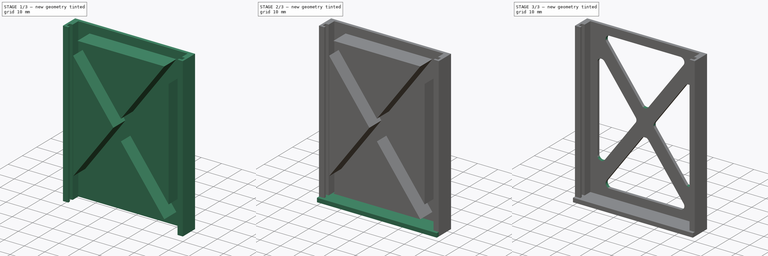
[diagram: build sequence overview — one tinted view per stage of 3, left to right]
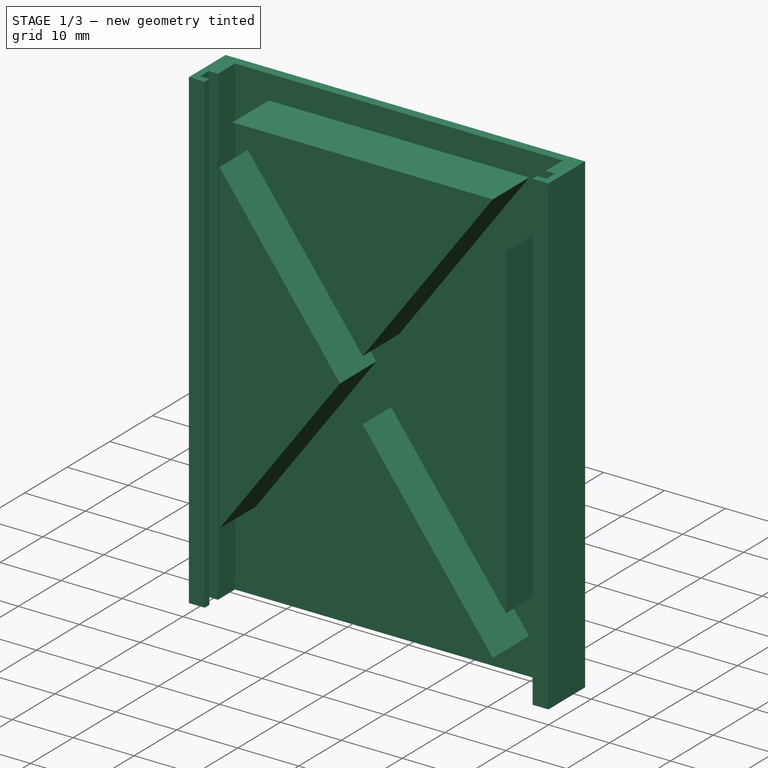
[diagram: stage 1 of 3 — iso view after this stage's code; geometry added in this stage tinted green]
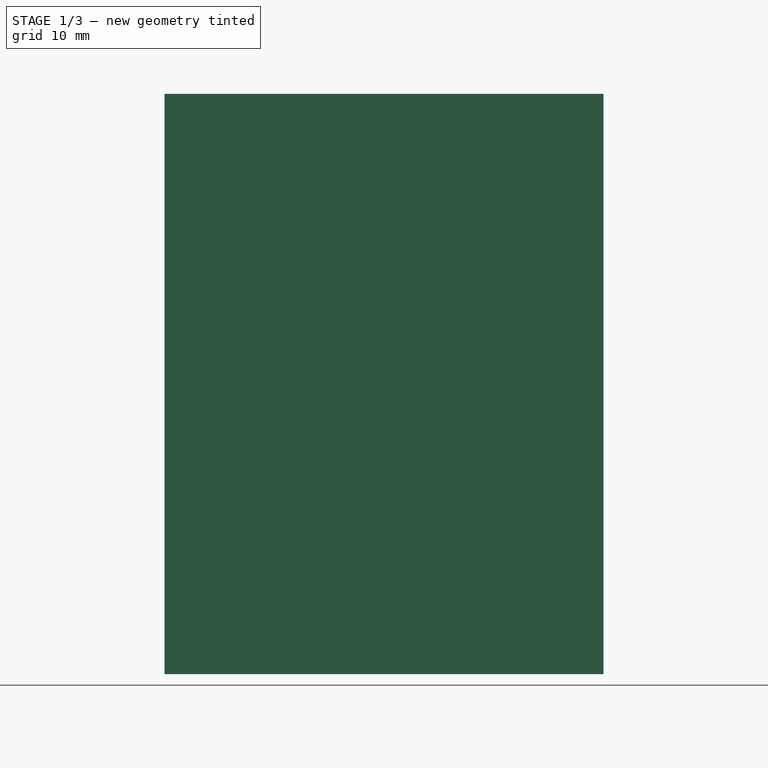
[diagram: stage 1 of 3 — front view after this stage's code; geometry added in this stage tinted green]
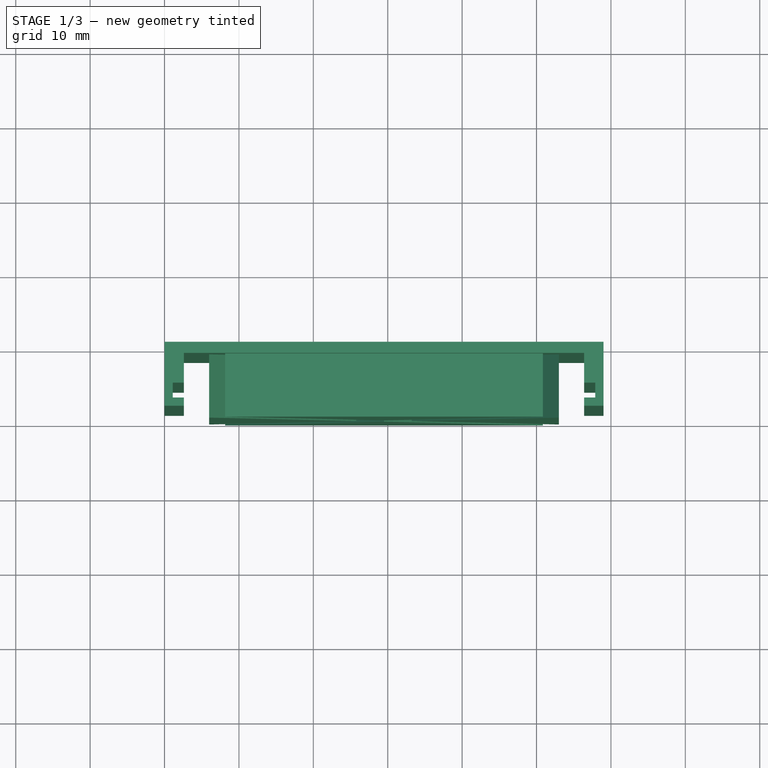
[diagram: stage 1 of 3 — top view after this stage's code; geometry added in this stage tinted green]
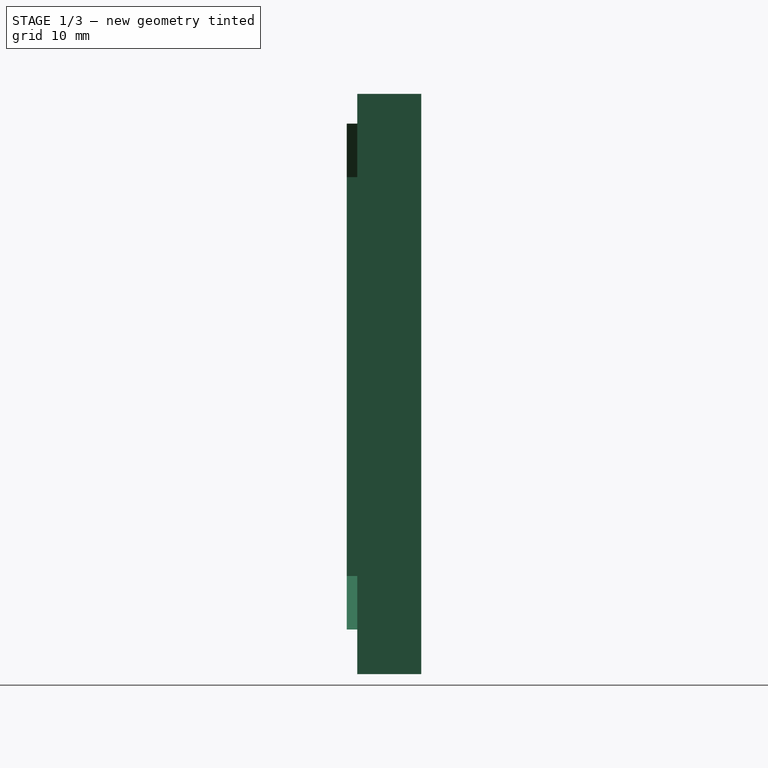
[diagram: stage 1 of 3 — right view after this stage's code; geometry added in this stage tinted green]
FCSTD DOCUMENT  (FreeCAD 0.15R4671 (Git))
Label: Relays
License: All rights reserved
LicenseURL: http://en.wikipedia.org/wiki/All_rights_reserved
objects: Sketcher::SketchObject×3, PartDesign::Pad×3, Part::MultiFuse×1, Part::Cut×1, PartDesign::Fillet×1
note: 12 computed .brp shape members not serialized (recipe doc carries the construction recipe); baked Part::Feature solids carry a one-line shape summary decoded from their .brp

FEATURE [PartDesign::Pad] Pad001
  Length = 78
  Length2 = 100
  Sketch = -> Sketch001
  Type = 0
FEATURE [Sketcher::SketchObject] Sketch002
  Placement = pos=(0,0,0) rot=(1,0,0;1.5708rad)
  sketch-geometry (18):
    g0: LineSegment [constr] StartX=0 StartY=0 StartZ=0 EndX=59 EndY=0 EndZ=0
    g1: LineSegment [constr] StartX=59 StartY=0 StartZ=0 EndX=59 EndY=80 EndZ=0
    g2: LineSegment [constr] StartX=59 StartY=80 StartZ=0 EndX=0 EndY=80 EndZ=0
    g3: LineSegment [constr] StartX=0 StartY=80 StartZ=0 EndX=0 EndY=0 EndZ=0
    g4: LineSegment [constr] StartX=59 StartY=80 StartZ=0 EndX=0 EndY=0 EndZ=0
    g5: LineSegment [constr] StartX=0 StartY=80 StartZ=0 EndX=59 EndY=0 EndZ=0
    g6: LineSegment StartX=8.15262 StartY=6 StartZ=0 EndX=29.5 EndY=34.9456 EndZ=0
    g7: LineSegment StartX=29.5 StartY=34.9456 StartZ=0 EndX=50.8474 EndY=6 EndZ=0
    g8: LineSegment StartX=50.8474 StartY=6 StartZ=0 EndX=8.15262 EndY=6 EndZ=0
    g9: LineSegment StartX=6 StartY=13.19 StartZ=0 EndX=25.7724 EndY=40 EndZ=0
    g10: LineSegment StartX=25.7724 StartY=40 StartZ=0 EndX=6 EndY=66.81 EndZ=0
    g11: LineSegment StartX=6 StartY=66.81 StartZ=0 EndX=6 EndY=13.19 EndZ=0
    g12: LineSegment StartX=8.15262 StartY=74 StartZ=0 EndX=29.5 EndY=45.0544 EndZ=0
    g13: LineSegment StartX=29.5 StartY=45.0544 StartZ=0 EndX=50.8474 EndY=74 EndZ=0
    g14: LineSegment StartX=50.8474 StartY=74 StartZ=0 EndX=8.15262 EndY=74 EndZ=0
    g15: LineSegment StartX=33.2276 StartY=40 StartZ=0 EndX=53 EndY=13.19 EndZ=0
    g16: LineSegment StartX=53 StartY=13.19 StartZ=0 EndX=53 EndY=66.81 EndZ=0
    g17: LineSegment StartX=53 StartY=66.81 StartZ=0 EndX=33.2276 EndY=40 EndZ=0
  constraints (51):
    c: Coincident(g0,g1)
    c: Coincident(g1,g2)
    c: Coincident(g2,g3)
    c: Coincident(g3,g0)
    c: Horizontal(g0)
    c: Horizontal(g2)
    c: Vertical(g1)
    c: Vertical(g3)
    c: Coincident(g0,g-1)
    c: Distance(g1) = 80
    c: Distance(g2) = 59
    c: Coincident(g4,g1)
    c: Coincident(g4,g-1)
    c: Coincident(g5,g2)
    c: Coincident(g5,g0)
    c: Coincident(g6,g7)
    c: Coincident(g7,g8)
    c: Coincident(g8,g6)
    c: Horizontal(g8)
    c: DistanceY(g-1,g6) = 6
    c: Parallel(g7,g5)
    c: Parallel(g6,g4)
    c: Distance(g6,g5) = 3
    c: Distance(g6,g4) = 3
    c: Coincident(g9,g10)
    c: Coincident(g10,g11)
    c: Coincident(g11,g9)
    c: Vertical(g11)
    c: DistanceX(g-1,g9) = 6
    c: Coincident(g12,g13)
    c: Coincident(g13,g14)
    c: Coincident(g14,g12)
    c: Horizontal(g14)
    c: Coincident(g15,g16)
    c: Vertical(g16)
    c: Coincident(g16,g17)
    c: Coincident(g17,g15)
    c: Parallel(g17,g13)
    c: Parallel(g13,g9)
    c: Parallel(g9,g6)
    c: Parallel(g12,g10)
    c: Parallel(g10,g7)
    c: Parallel(g7,g15)
    c: Distance(g15,g5) = 3
    c: Distance(g15,g4) = 3
    c: DistanceX(g16,g1) = 6
    c: DistanceY(g13,g1) = 6
    c: Distance(g9,g5) = 3
    c: Distance(g12,g5) = 3
    c: Distance(g12,g4) = 3
    c: Distance(g9,g4) = 3
FEATURE [PartDesign::Pad] Pad002
  Length = 10
  Length2 = 100
  Placement = pos=(0,0,0) rot=(1,0,0;1.5708rad)
  Sketch = -> Sketch002
  Type = 0
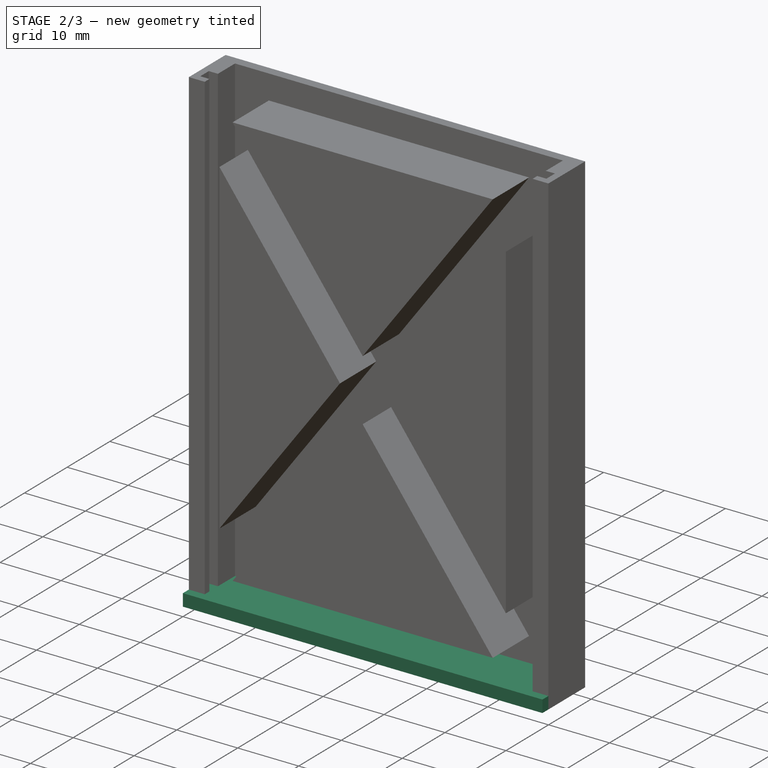
[diagram: stage 2 of 3 — iso view after this stage's code; geometry added in this stage tinted green]
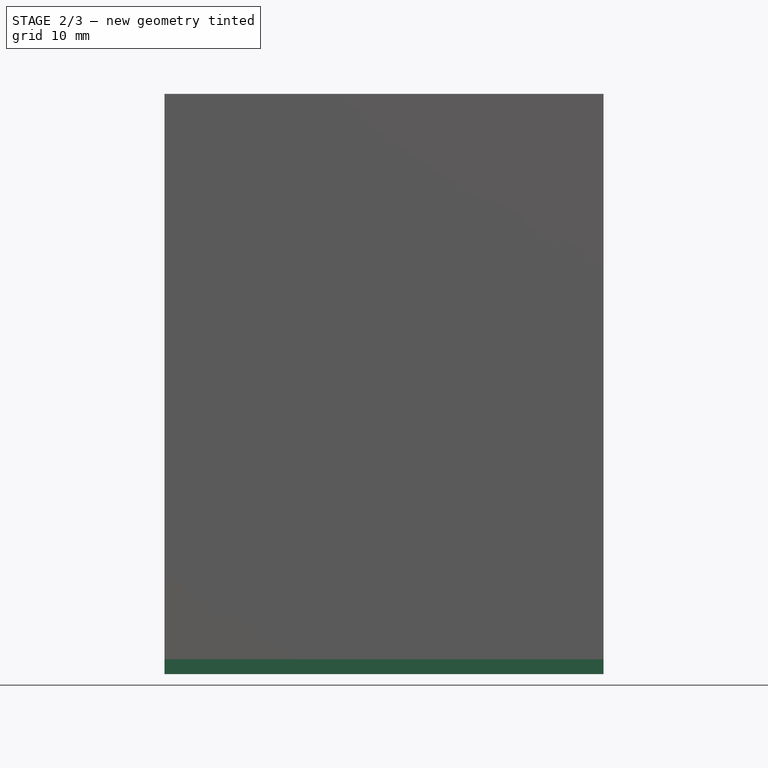
[diagram: stage 2 of 3 — front view after this stage's code; geometry added in this stage tinted green]
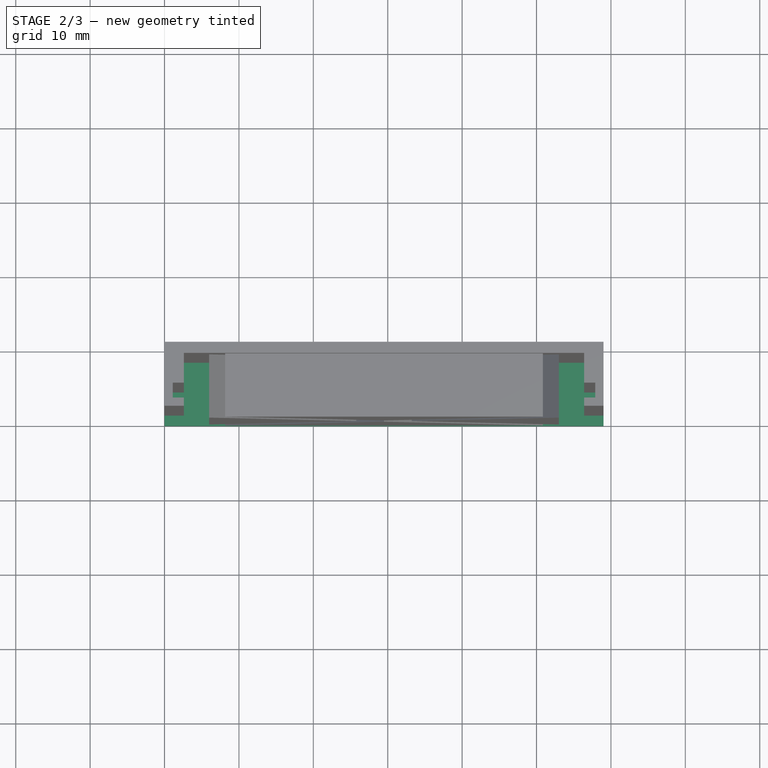
[diagram: stage 2 of 3 — top view after this stage's code; geometry added in this stage tinted green]
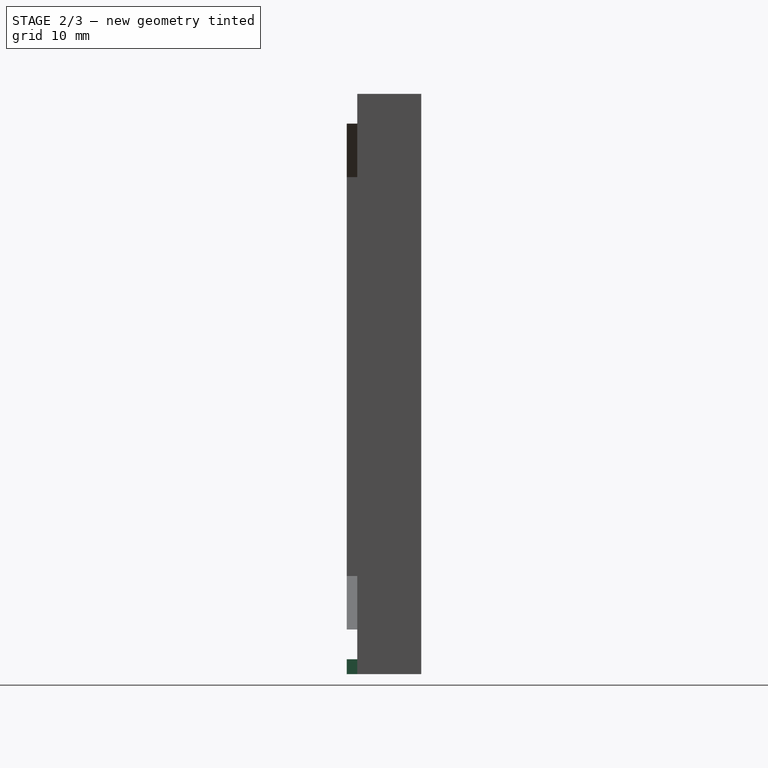
[diagram: stage 2 of 3 — right view after this stage's code; geometry added in this stage tinted green]
FEATURE [Sketcher::SketchObject] Sketch  label="Base"
  sketch-geometry (4):
    g0: LineSegment StartX=0 StartY=0 StartZ=0 EndX=59 EndY=0 EndZ=0
    g1: LineSegment StartX=59 StartY=0 StartZ=0 EndX=59 EndY=-10 EndZ=0
    g2: LineSegment StartX=59 StartY=-10 StartZ=0 EndX=0 EndY=-10 EndZ=0
    g3: LineSegment StartX=0 StartY=-10 StartZ=0 EndX=0 EndY=0 EndZ=0
  constraints (11):
    c: Coincident(g0,g1)
    c: Coincident(g1,g2)
    c: Coincident(g2,g3)
    c: Coincident(g3,g0)
    c: Horizontal(g0)
    c: Horizontal(g2)
    c: Vertical(g1)
    c: Vertical(g3)
    c: Distance(g0) = 59
    c: Distance(g1) = 10
    c: Coincident(g0,g-1)
FEATURE [Sketcher::SketchObject] Sketch001  label="Seguradores"
  sketch-geometry (16):
    g0: LineSegment StartX=0 StartY=0 StartZ=0 EndX=0 EndY=-8.6 EndZ=0
    g1: LineSegment StartX=0 StartY=-8.6 StartZ=0 EndX=2.6 EndY=-8.6 EndZ=0
    g2: LineSegment StartX=2.6 StartY=-8.6 StartZ=0 EndX=2.6 EndY=-7.5 EndZ=0
    g3: LineSegment StartX=2.6 StartY=-7.5 StartZ=0 EndX=1.1 EndY=-7.5 EndZ=0
    g4: LineSegment StartX=1.1 StartY=-7.5 StartZ=0 EndX=1.1 EndY=-5.5 EndZ=0
    g5: LineSegment StartX=1.1 StartY=-5.5 StartZ=0 EndX=2.6 EndY=-5.5 EndZ=0
    g6: LineSegment StartX=59 StartY=0 StartZ=0 EndX=0 EndY=0 EndZ=0
    g7: LineSegment StartX=2.6 StartY=-5.5 StartZ=0 EndX=2.6 EndY=-1.5 EndZ=0
    g8: LineSegment StartX=2.6 StartY=-1.5 StartZ=0 EndX=56.4 EndY=-1.5 EndZ=0
    g9: LineSegment StartX=56.4 StartY=-1.5 StartZ=0 EndX=56.4 EndY=-5.5 EndZ=0
    g10: LineSegment StartX=56.4 StartY=-5.5 StartZ=0 EndX=57.9 EndY=-5.5 EndZ=0
    g11: LineSegment StartX=57.9 StartY=-5.5 StartZ=0 EndX=57.9 EndY=-7.5 EndZ=0
    g12: LineSegment StartX=57.9 StartY=-7.5 StartZ=0 EndX=56.4 EndY=-7.5 EndZ=0
    g13: LineSegment StartX=56.4 StartY=-7.5 StartZ=0 EndX=56.4 EndY=-8.6 EndZ=0
    g14: LineSegment StartX=56.4 StartY=-8.6 StartZ=0 EndX=59 EndY=-8.6 EndZ=0
    g15: LineSegment StartX=59 StartY=-8.6 StartZ=0 EndX=59 EndY=0 EndZ=0
  constraints (53):
    c: Vertical(g0)
    c: Coincident(g0,g1)
    c: Coincident(g1,g2)
    c: Coincident(g2,g3)
    c: Horizontal(g3)
    c: Coincident(g3,g4)
    c: Vertical(g4)
    c: Coincident(g4,g5)
    c: PointOnObject(g6,g-1)
    c: Coincident(g6,g-1)
    c: Horizontal(g1)
    c: Vertical(g2)
    c: Equal(g5,g3)
    c: Horizontal(g5)
    c: Distance(g4) = 2
    c: Distance(g1) = 2.6
    c: Coincident(g0,g-1)
    c: Distance(g0) = 8.6
    c: Coincident(g5,g7)
    c: Vertical(g7)
    c: Coincident(g7,g8)
    c: Horizontal(g8)
    c: Coincident(g8,g9)
    c: Vertical(g9)
    c: Coincident(g9,g10)
    c: Horizontal(g10)
    c: Coincident(g10,g11)
    c: Vertical(g11)
    c: Coincident(g11,g12)
    c: Horizontal(g12)
    c: Coincident(g12,g13)
    c: Vertical(g13)
    c: Coincident(g13,g14)
    c: Horizontal(g14)
    c: Coincident(g14,g15)
    c: Vertical(g15)
    c: Coincident(g6,g15)
    c: Equal(g1,g14)
    c: Equal(g11,g4)
    c: Equal(g13,g2)
    c: Equal(g9,g7)
    c: Distance(g6) = 59
    c: Equal(g14,g1)
    c: Equal(g10,g12)
    c: DistanceX(g4,g10) = 56.8
    c: DistanceY(g7) = 4
    c: DistanceY(g-1,g7) = -1.5
    c: Equal(g9,g7)
    c: Equal(g5,g3)
    c: Equal(g5,g3)
    c: Equal(g3,g10)
    c: Equal(g10,g12)
    c: Equal(g15,g0)
FEATURE [PartDesign::Pad] Pad
  Length = 2
  Length2 = 100
  Sketch = -> Sketch
  Type = 0
FEATURE [Part::MultiFuse] Fusion  label="Relay001"
  Shapes = -> [Pad,Pad001]
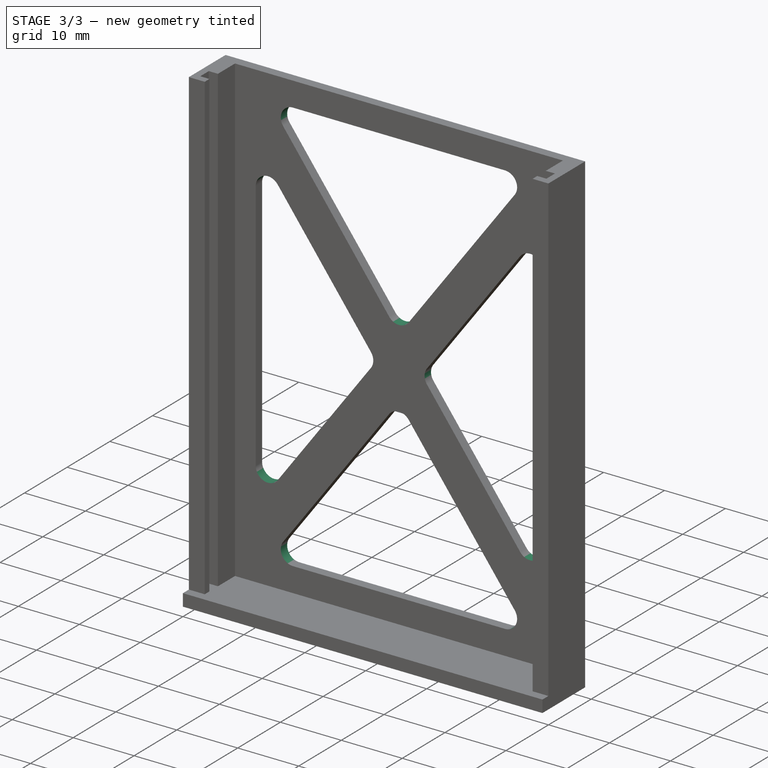
[diagram: stage 3 of 3 — iso view after this stage's code; geometry added in this stage tinted green]
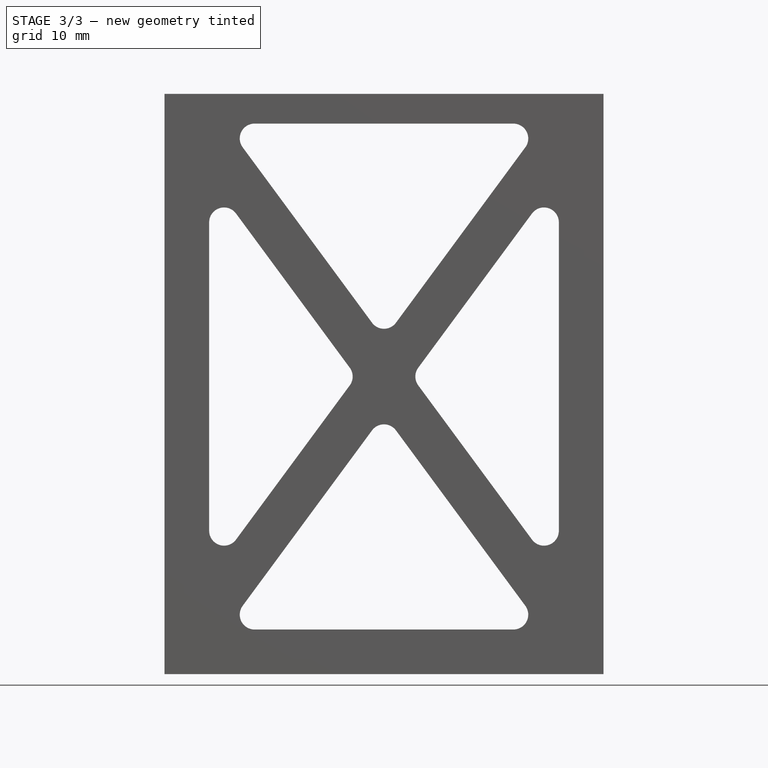
[diagram: stage 3 of 3 — front view after this stage's code; geometry added in this stage tinted green]
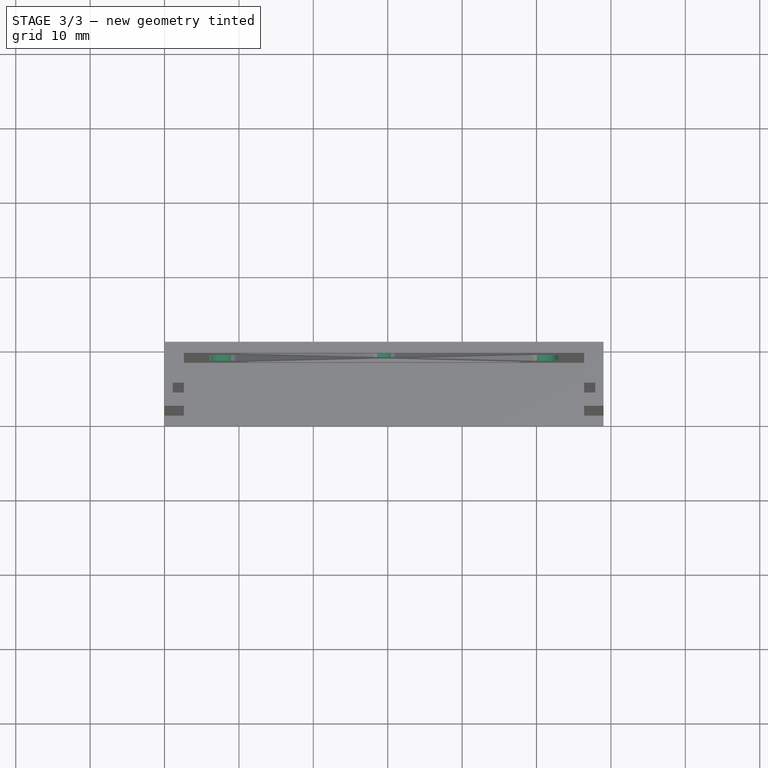
[diagram: stage 3 of 3 — top view after this stage's code; geometry added in this stage tinted green]
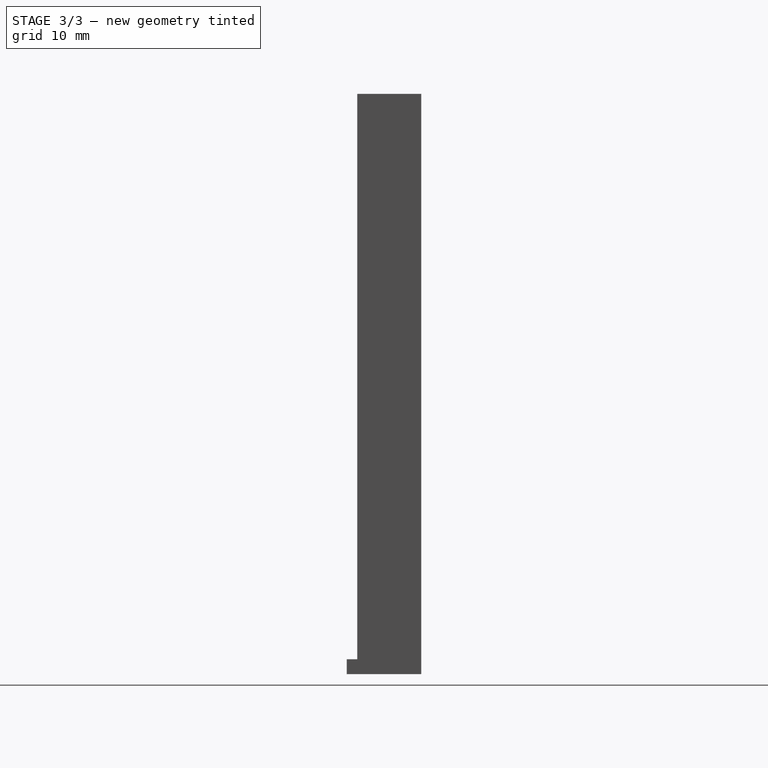
[diagram: stage 3 of 3 — right view after this stage's code; geometry added in this stage tinted green]
FEATURE [Part::Cut] Cut
  Base = -> Fusion
  Tool = -> Pad002
FEATURE [PartDesign::Fillet] Fillet  label="4 Relay"
  Base = -> Cut [Edge109,Edge96,Edge105,Edge111,Edge108,Edge99,Edge90,Edge91,Edge102,Edge93,Edge103,Edge97]
  Radius = 2
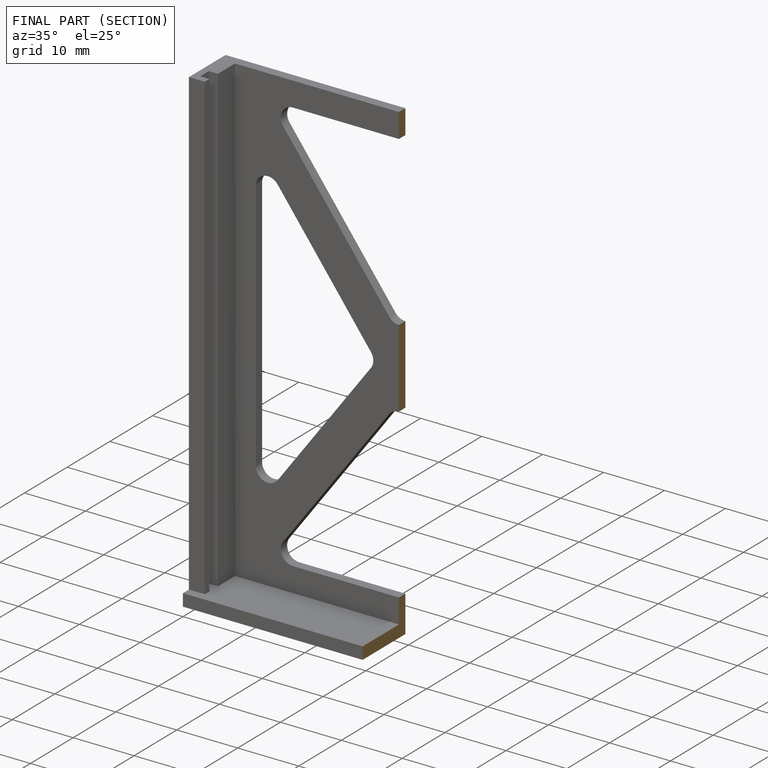
[diagram: finished part — half-section view (interior)]
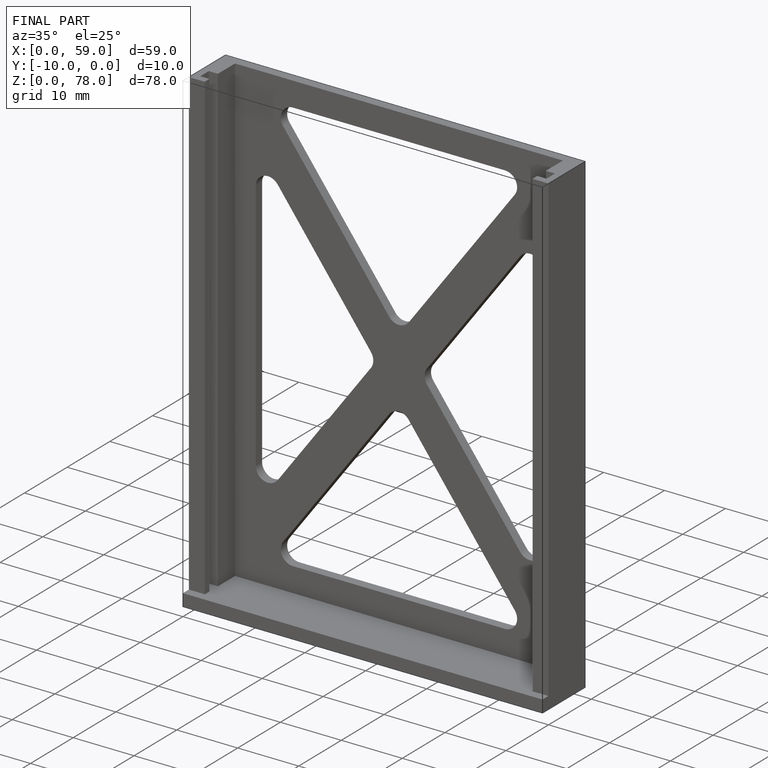
[diagram: finished part — iso view with bounding-box wireframe]
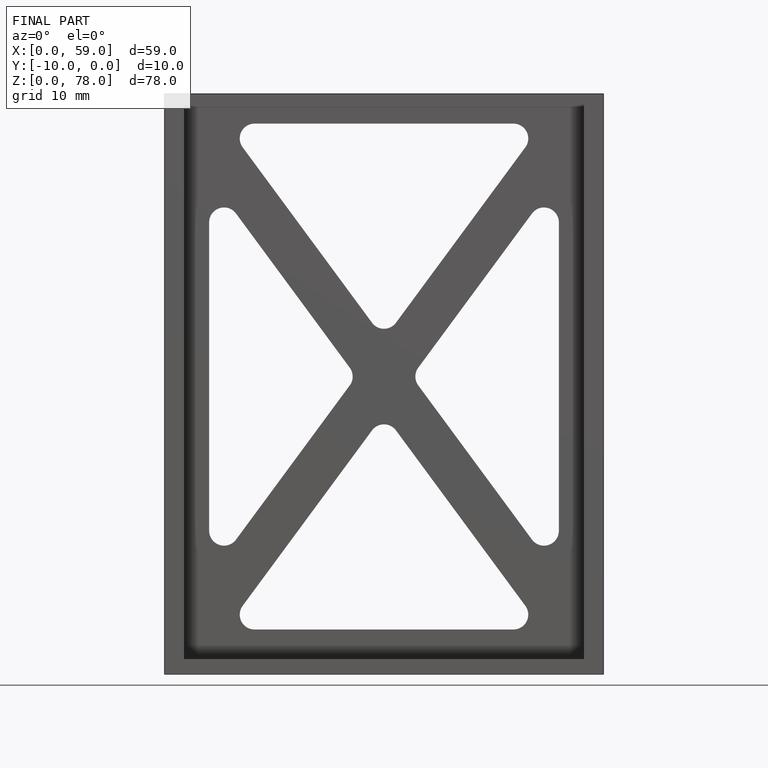
[diagram: finished part — front view with bounding-box wireframe]
